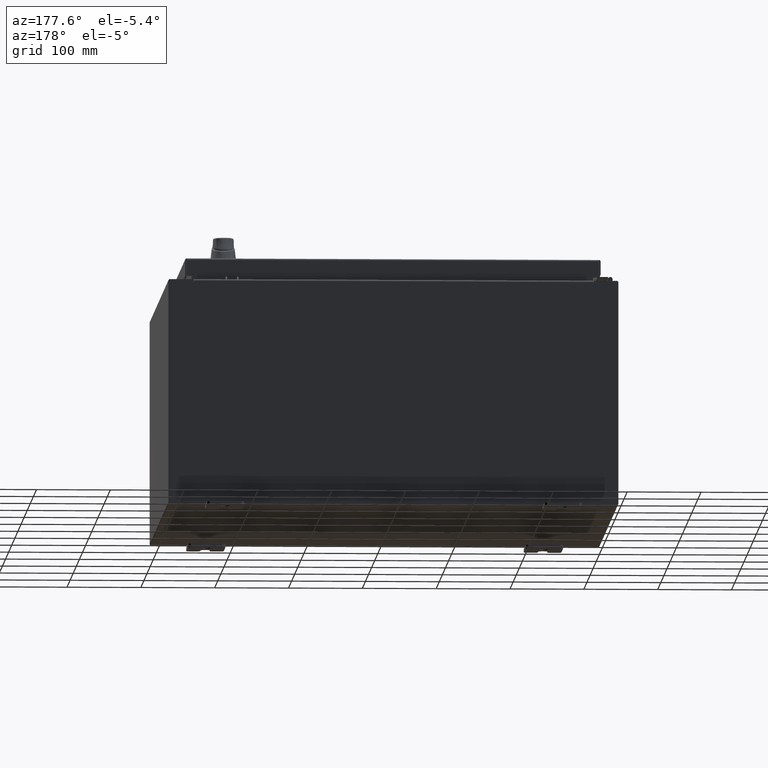
[diagram: clean part render]
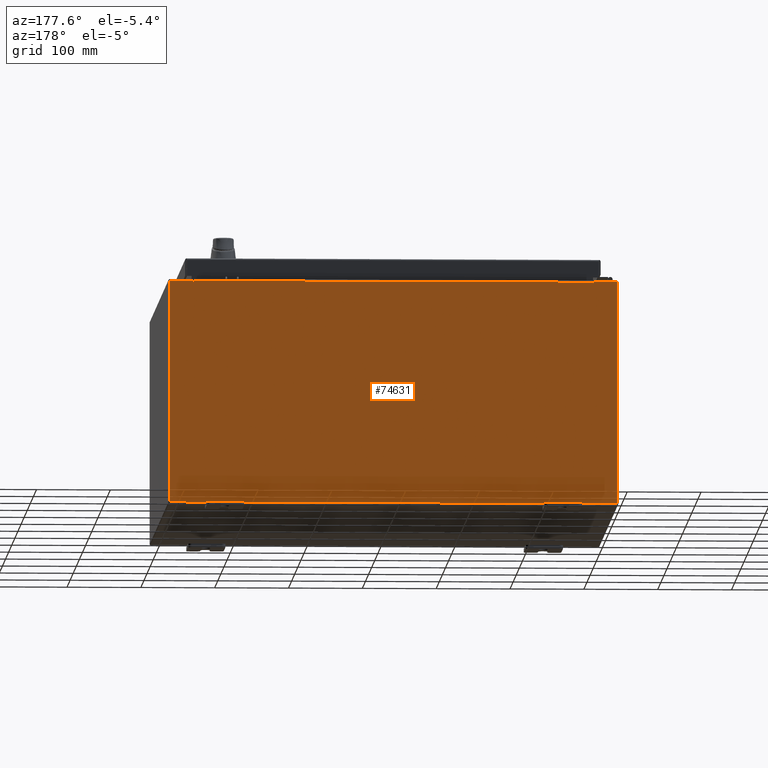
[diagram: same view with one face highlighted and labeled with its STEP entity id]
A machine part, auxiliary view. The second image highlights one B-rep face of the part: STEP entity #74631.
In plain terms, the highlighted planar face has unit normal (0, -1, 0).
Its self-contained STEP definition (entity closure, byte-faithful):
#752 = CARTESIAN_POINT ( 'NONE',  ( -10.63720000000000400, -1.707404996040164500E-016, 5.912300000000001000 ) ) ;
#1421 = ORIENTED_EDGE ( 'NONE', *, *, #86535, .T. ) ;
#4008 = VECTOR ( 'NONE', #82767, 39.37007874015748100 ) ;
#5665 = EDGE_CURVE ( 'NONE', #92511, #88216, #37551, .T. ) ;
#7042 = EDGE_CURVE ( 'NONE', #103433, #75659, #102337, .T. ) ;
#9520 = DIRECTION ( 'NONE',  ( 1.000000000000000000, 0.0000000000000000000, 0.0000000000000000000 ) ) ;
#11741 = EDGE_CURVE ( 'NONE', #43840, #105590, #42287, .T. ) ;
#12507 = CARTESIAN_POINT ( 'NONE',  ( 11.92530000000000000, 0.0000000000000000000, 5.925300000000001800 ) ) ;
#14233 = DIRECTION ( 'NONE',  ( 1.000000000000000000, 0.0000000000000000000, 4.581600452255731000E-017 ) ) ;
#14253 = ORIENTED_EDGE ( 'NONE', *, *, #101132, .F. ) ;
#14310 = CARTESIAN_POINT ( 'NONE',  ( -11.92530000000000000, 0.0000000000000000000, -5.925299999999999100 ) ) ;
#15686 = CARTESIAN_POINT ( 'NONE',  ( -10.67455000000000200, 0.0000000000000000000, 5.874950000000001000 ) ) ;
#16856 = LINE ( 'NONE', #66074, #80513 ) ;
#18853 = EDGE_CURVE ( 'NONE', #104735, #105590, #109320, .T. ) ;
#22186 = CARTESIAN_POINT ( 'NONE',  ( -11.92530000000000000, 0.0000000000000000000, -5.925299999999999100 ) ) ;
#23423 = DIRECTION ( 'NONE',  ( 0.0000000000000000000, -1.000000000000000000, 0.0000000000000000000 ) ) ;
#24931 = EDGE_CURVE ( 'NONE', #37555, #50519, #42930, .T. ) ;
#25583 = VERTEX_POINT ( 'NONE', #36871 ) ;
#25606 = DIRECTION ( 'NONE',  ( 0.0000000000000000000, 0.0000000000000000000, 1.000000000000000000 ) ) ;
#27280 = CARTESIAN_POINT ( 'NONE',  ( 10.67455000000000200, 0.0000000000000000000, 5.874950000000001000 ) ) ;
#30965 = EDGE_CURVE ( 'NONE', #25583, #92511, #92575, .T. ) ;
#31165 = CIRCLE ( 'NONE', #45238, 0.01867499999999949400 ) ;
#31990 = LINE ( 'NONE', #12507, #98271 ) ;
#32399 = ORIENTED_EDGE ( 'NONE', *, *, #5665, .F. ) ;
#32985 = CARTESIAN_POINT ( 'NONE',  ( 10.65587500000000200, 0.0000000000000000000, 5.874950000000001000 ) ) ;
#34563 = VERTEX_POINT ( 'NONE', #27280 ) ;
#36871 = CARTESIAN_POINT ( 'NONE',  ( -10.63720000000000400, -0.0000000000000000000, 5.874950000000001000 ) ) ;
#37551 = LINE ( 'NONE', #68730, #60549 ) ;
#37555 = VERTEX_POINT ( 'NONE', #14310 ) ;
#37899 = ORIENTED_EDGE ( 'NONE', *, *, #7042, .T. ) ;
#40226 = CARTESIAN_POINT ( 'NONE',  ( 10.63720000000000400, 0.0000000000000000000, 5.874950000000001000 ) ) ;
#41701 = DIRECTION ( 'NONE',  ( 0.0000000000000000000, 0.0000000000000000000, -1.000000000000000000 ) ) ;
#41767 = AXIS2_PLACEMENT_3D ( 'NONE', #46421, #106955, #55132 ) ;
#42287 = LINE ( 'NONE', #752, #62582 ) ;
#42585 = DIRECTION ( 'NONE',  ( 0.0000000000000000000, 0.0000000000000000000, -1.000000000000000000 ) ) ;
#42930 = LINE ( 'NONE', #89558, #109296 ) ;
#43422 = EDGE_LOOP ( 'NONE', ( #32399, #88988, #14253, #100461, #81433, #85627, #65925, #37899, #105716, #55279, #48827, #1421 ) ) ;
#43840 = VERTEX_POINT ( 'NONE', #60268 ) ;
#45238 = AXIS2_PLACEMENT_3D ( 'NONE', #32985, #93530, #41701 ) ;
#46421 = CARTESIAN_POINT ( 'NONE',  ( -10.65587500000000200, 0.0000000000000000000, 5.874950000000001000 ) ) ;
#48612 = DIRECTION ( 'NONE',  ( 1.000000000000000000, 0.0000000000000000000, 4.581600452255731000E-017 ) ) ;
#48827 = ORIENTED_EDGE ( 'NONE', *, *, #24931, .T. ) ;
#50118 = VECTOR ( 'NONE', #42585, 39.37007874015748100 ) ;
#50134 = LINE ( 'NONE', #22186, #4008 ) ;
#50519 = VERTEX_POINT ( 'NONE', #87654 ) ;
#51594 = CARTESIAN_POINT ( 'NONE',  ( 11.92530000000000000, 0.0000000000000000000, -5.925299999999999100 ) ) ;
#54321 = CARTESIAN_POINT ( 'NONE',  ( 11.92530000000000000, 0.0000000000000000000, 5.925300000000001800 ) ) ;
#55132 = DIRECTION ( 'NONE',  ( 0.0000000000000000000, 0.0000000000000000000, -1.000000000000000000 ) ) ;
#55279 = ORIENTED_EDGE ( 'NONE', *, *, #110178, .T. ) ;
#55576 = DIRECTION ( 'NONE',  ( 0.0000000000000000000, 0.0000000000000000000, 1.000000000000000000 ) ) ;
#55671 = DIRECTION ( 'NONE',  ( 0.0000000000000000000, 0.0000000000000000000, -1.000000000000000000 ) ) ;
#57820 = EDGE_CURVE ( 'NONE', #75659, #97041, #31990, .T. ) ;
#60268 = CARTESIAN_POINT ( 'NONE',  ( -10.63720000000000400, -1.707404996040164500E-016, 5.912300000000001000 ) ) ;
#60549 = VECTOR ( 'NONE', #25606, 39.37007874015748100 ) ;
#62582 = VECTOR ( 'NONE', #9520, 39.37007874015748100 ) ;
#64003 = FACE_OUTER_BOUND ( 'NONE', #43422, .T. ) ;
#65925 = ORIENTED_EDGE ( 'NONE', *, *, #91103, .F. ) ;
#66011 = VECTOR ( 'NONE', #55576, 39.37007874015748100 ) ;
#66074 = CARTESIAN_POINT ( 'NONE',  ( -11.92530000000000000, 0.0000000000000000000, 5.925300000000000000 ) ) ;
#67807 = LINE ( 'NONE', #98032, #85391 ) ;
#68730 = CARTESIAN_POINT ( 'NONE',  ( -10.67455000000000200, -0.0000000000000000000, 0.0000000000000000000 ) ) ;
#72347 = DIRECTION ( 'NONE',  ( 0.0000000000000000000, 0.0000000000000000000, -1.000000000000000000 ) ) ;
#74631 = ADVANCED_FACE ( 'NONE', ( #64003 ), #75280, .F. ) ;
#75280 = PLANE ( 'NONE',  #103738 ) ;
#75659 = VERTEX_POINT ( 'NONE', #54321 ) ;
#75895 = LINE ( 'NONE', #85745, #50118 ) ;
#79361 = VECTOR ( 'NONE', #48612, 39.37007874015748100 ) ;
#79425 = EDGE_CURVE ( 'NONE', #34563, #104735, #31165, .T. ) ;
#80513 = VECTOR ( 'NONE', #14233, 39.37007874015748100 ) ;
#80885 = DIRECTION ( 'NONE',  ( -0.0000000000000000000, -0.0000000000000000000, 1.000000000000000000 ) ) ;
#81433 = ORIENTED_EDGE ( 'NONE', *, *, #18853, .F. ) ;
#82767 = DIRECTION ( 'NONE',  ( -1.000000000000000000, -0.0000000000000000000, -0.0000000000000000000 ) ) ;
#83101 = CARTESIAN_POINT ( 'NONE',  ( -11.92530000000000000, 0.0000000000000000000, 5.925300000000000000 ) ) ;
#83987 = DIRECTION ( 'NONE',  ( 0.0000000000000000000, -0.0000000000000000000, -1.000000000000000000 ) ) ;
#85352 = CARTESIAN_POINT ( 'NONE',  ( -10.67455000000000200, 0.0000000000000000000, 5.925300000000000000 ) ) ;
#85391 = VECTOR ( 'NONE', #72347, 39.37007874015748100 ) ;
#85627 = ORIENTED_EDGE ( 'NONE', *, *, #79425, .F. ) ;
#85745 = CARTESIAN_POINT ( 'NONE',  ( -10.63720000000000400, -0.0000000000000000000, 0.0000000000000000000 ) ) ;
#86535 = EDGE_CURVE ( 'NONE', #50519, #88216, #16856, .T. ) ;
#87654 = CARTESIAN_POINT ( 'NONE',  ( -11.92530000000000000, 0.0000000000000000000, 5.925300000000000000 ) ) ;
#88216 = VERTEX_POINT ( 'NONE', #85352 ) ;
#88988 = ORIENTED_EDGE ( 'NONE', *, *, #30965, .F. ) ;
#89558 = CARTESIAN_POINT ( 'NONE',  ( -11.92530000000000000, 0.0000000000000000000, 5.925300000000000000 ) ) ;
#91103 = EDGE_CURVE ( 'NONE', #103433, #34563, #67807, .T. ) ;
#92511 = VERTEX_POINT ( 'NONE', #15686 ) ;
#92575 = CIRCLE ( 'NONE', #41767, 0.01867499999999949400 ) ;
#93530 = DIRECTION ( 'NONE',  ( -0.0000000000000000000, 1.000000000000000000, -0.0000000000000000000 ) ) ;
#93721 = CARTESIAN_POINT ( 'NONE',  ( 10.63720000000000400, 0.0000000000000000000, 5.912300000000001000 ) ) ;
#97041 = VERTEX_POINT ( 'NONE', #51594 ) ;
#98032 = CARTESIAN_POINT ( 'NONE',  ( 10.67455000000000200, 0.0000000000000000000, 0.0000000000000000000 ) ) ;
#98271 = VECTOR ( 'NONE', #55671, 39.37007874015748100 ) ;
#100461 = ORIENTED_EDGE ( 'NONE', *, *, #11741, .T. ) ;
#100960 = CARTESIAN_POINT ( 'NONE',  ( 0.0000000000000000000, 0.0000000000000000000, 0.0000000000000000000 ) ) ;
#101132 = EDGE_CURVE ( 'NONE', #43840, #25583, #75895, .T. ) ;
#102337 = LINE ( 'NONE', #83101, #79361 ) ;
#103433 = VERTEX_POINT ( 'NONE', #108740 ) ;
#103738 = AXIS2_PLACEMENT_3D ( 'NONE', #100960, #23423, #83987 ) ;
#104735 = VERTEX_POINT ( 'NONE', #40226 ) ;
#105590 = VERTEX_POINT ( 'NONE', #93721 ) ;
#105716 = ORIENTED_EDGE ( 'NONE', *, *, #57820, .T. ) ;
#106955 = DIRECTION ( 'NONE',  ( -0.0000000000000000000, 1.000000000000000000, -0.0000000000000000000 ) ) ;
#107778 = CARTESIAN_POINT ( 'NONE',  ( 10.63720000000000400, 0.0000000000000000000, 0.0000000000000000000 ) ) ;
#108740 = CARTESIAN_POINT ( 'NONE',  ( 10.67455000000000200, 0.0000000000000000000, 5.925300000000001800 ) ) ;
#109296 = VECTOR ( 'NONE', #80885, 39.37007874015748100 ) ;
#109320 = LINE ( 'NONE', #107778, #66011 ) ;
#110178 = EDGE_CURVE ( 'NONE', #97041, #37555, #50134, .T. ) ;